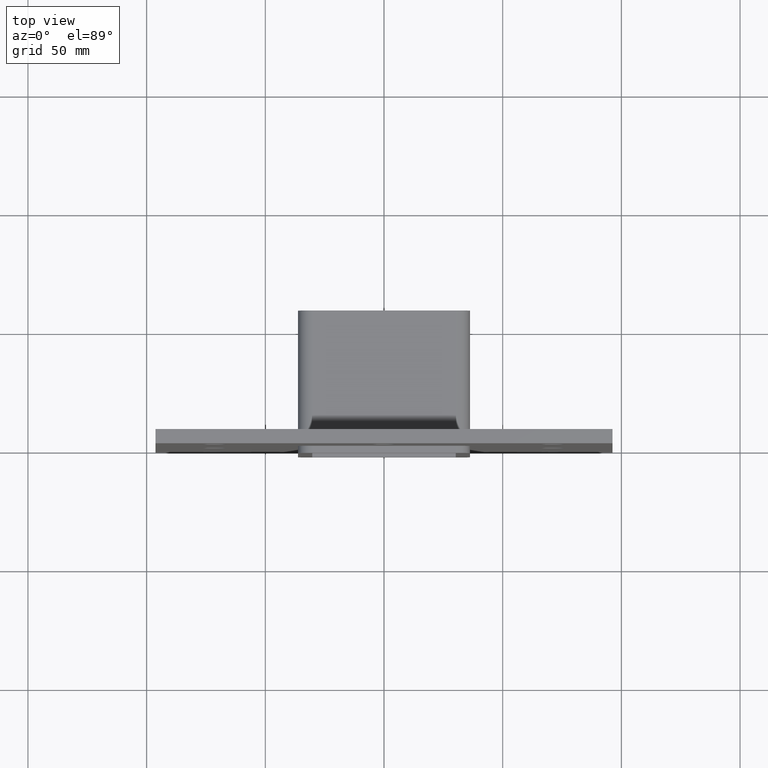
[diagram: clean part render]
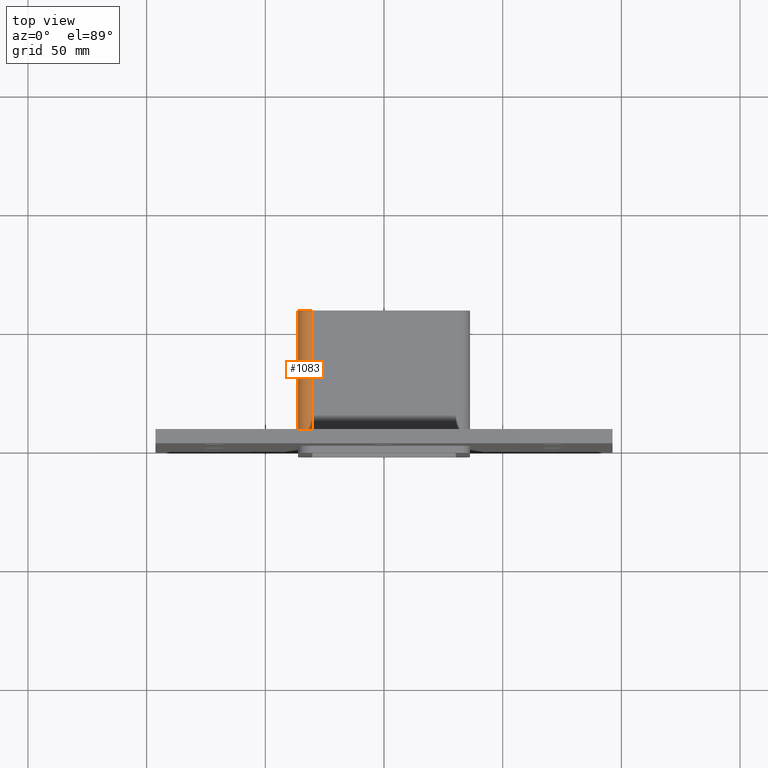
[diagram: same view with one face highlighted and labeled with its STEP entity id]
A machine part, top view. The second image highlights one B-rep face of the part: STEP entity #1083.
In plain terms, the highlighted cylindrical surface (edge-blend (fillet) strip) has radius 6 mm, axis along (0, 1, 0).
Its self-contained STEP definition (entity closure, byte-faithful):
#400=CARTESIAN_POINT('',(-30.250000000000004,6.000000000000001,56.5));
#401=VERTEX_POINT('',#400);
#408=CARTESIAN_POINT('',(-36.250000000000007,6.000000000000001,50.500000000000007));
#409=VERTEX_POINT('',#408);
#410=CARTESIAN_POINT('',(-30.250000000000004,6.000000000000001,50.500000000000007));
#411=DIRECTION('',(0.0,1.0,0.0));
#412=DIRECTION('',(-0.707106781186547,0.0,0.707106781186547));
#413=AXIS2_PLACEMENT_3D('',#410,#411,#412);
#414=CIRCLE('',#413,6.0);
#415=EDGE_CURVE('',#409,#401,#414,.T.);
#1041=CARTESIAN_POINT('',(-36.250000000000007,57.0,50.500000000000007));
#1042=VERTEX_POINT('',#1041);
#1043=CARTESIAN_POINT('',(-36.250000000000007,57.0,50.500000000000007));
#1044=DIRECTION('',(0.0,-1.0,0.0));
#1045=VECTOR('',#1044,51.0);
#1046=LINE('',#1043,#1045);
#1047=EDGE_CURVE('',#1042,#409,#1046,.T.);
#1059=CARTESIAN_POINT('',(-30.250000000000004,0.0,50.500000000000007));
#1060=DIRECTION('',(0.0,1.0,0.0));
#1061=DIRECTION('',(-0.707106781186547,0.0,0.707106781186547));
#1062=AXIS2_PLACEMENT_3D('',#1059,#1060,#1061);
#1063=CYLINDRICAL_SURFACE('',#1062,6.000000000000001);
#1064=ORIENTED_EDGE('',*,*,#415,.T.);
#1065=CARTESIAN_POINT('',(-30.250000000000004,57.0,56.5));
#1066=VERTEX_POINT('',#1065);
#1067=CARTESIAN_POINT('',(-30.250000000000004,6.000000000000001,56.5));
#1068=DIRECTION('',(0.0,1.0,0.0));
#1069=VECTOR('',#1068,51.0);
#1070=LINE('',#1067,#1069);
#1071=EDGE_CURVE('',#401,#1066,#1070,.T.);
#1072=ORIENTED_EDGE('',*,*,#1071,.T.);
#1073=CARTESIAN_POINT('',(-30.250000000000004,57.0,50.500000000000007));
#1074=DIRECTION('',(0.0,-1.0,0.0));
#1075=DIRECTION('',(-0.707106781186547,0.0,0.707106781186547));
#1076=AXIS2_PLACEMENT_3D('',#1073,#1074,#1075);
#1077=CIRCLE('',#1076,6.0);
#1078=EDGE_CURVE('',#1066,#1042,#1077,.T.);
#1079=ORIENTED_EDGE('',*,*,#1078,.T.);
#1080=ORIENTED_EDGE('',*,*,#1047,.T.);
#1081=EDGE_LOOP('',(#1064,#1072,#1079,#1080));
#1082=FACE_OUTER_BOUND('',#1081,.T.);
#1083=ADVANCED_FACE('',(#1082),#1063,.T.);